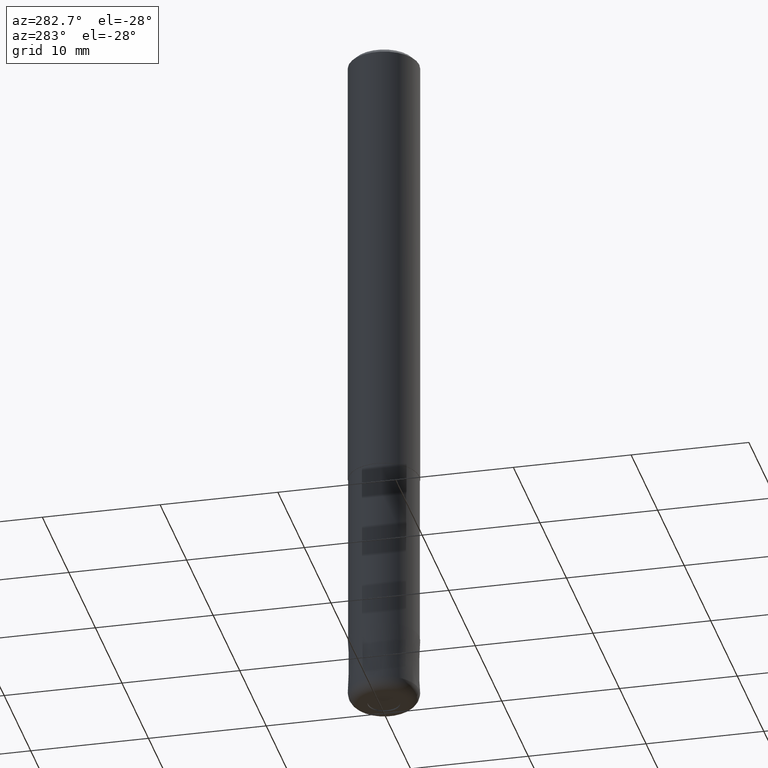
[diagram: clean part render]
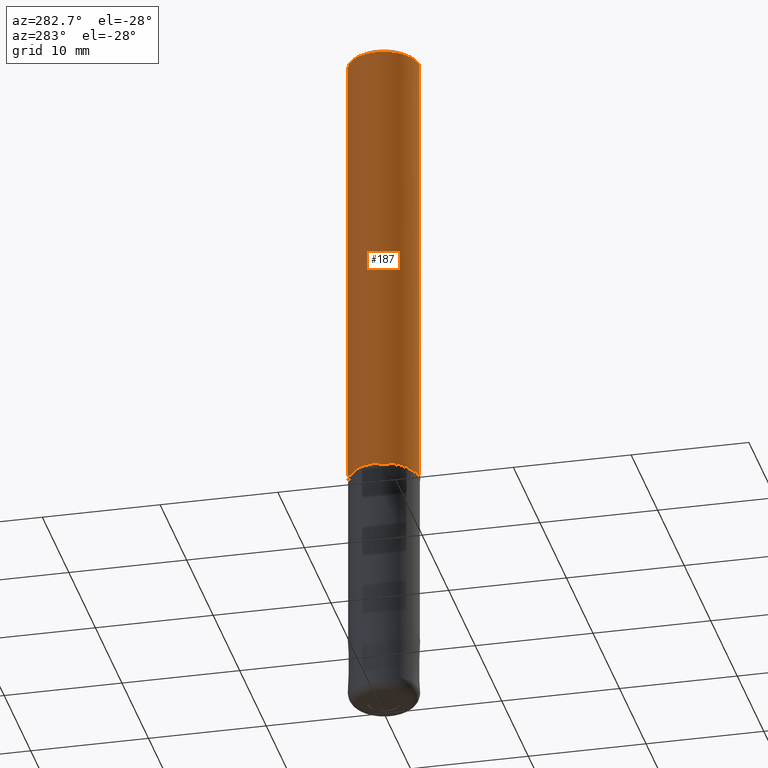
[diagram: same view with one face highlighted and labeled with its STEP entity id]
A machine part, auxiliary view. The second image highlights one B-rep face of the part: STEP entity #187.
In plain terms, the highlighted cylindrical surface (edge-blend (fillet) strip) has radius 3 mm, axis along (-0, -0, 1).
Its self-contained STEP definition (entity closure, byte-faithful):
#119=VERTEX_POINT('',#306);
#133=VERTEX_POINT('',#320);
#153=EDGE_CURVE('',#119,#175,#348,.T.);
#175=VERTEX_POINT('',#373);
#187=ADVANCED_FACE('',(#386),#387,.T.);
#209=EDGE_CURVE('',#271,#133,#412,.T.);
#255=EDGE_CURVE('',#119,#133,#463,.T.);
#267=EDGE_CURVE('',#175,#271,#477,.T.);
#271=VERTEX_POINT('',#482);
#306=CARTESIAN_POINT('',(3.67381906146713E-016,-3.0,-39.0));
#320=CARTESIAN_POINT('',(0.0,3.0,-39.0));
#348=LINE('',#560,#561);
#373=CARTESIAN_POINT('',(3.67381906146713E-016,-3.0,-0.399999999999999));
#386=FACE_OUTER_BOUND('',#611,.T.);
#387=CYLINDRICAL_SURFACE('',#612,3.0);
#412=LINE('',#645,#646);
#463=CIRCLE('',#709,3.0);
#477=CIRCLE('',#724,3.0);
#482=CARTESIAN_POINT('',(0.0,3.0,-0.399999999999999));
#560=CARTESIAN_POINT('',(3.67381906146713E-016,-3.0,-19.7));
#561=VECTOR('',#801,1.0);
#611=EDGE_LOOP('',(#853,#854,#855,#856));
#612=AXIS2_PLACEMENT_3D('',#857,#858,#859);
#645=CARTESIAN_POINT('',(-3.67381906146713E-016,3.0,-19.7));
#646=VECTOR('',#900,1.0);
#709=AXIS2_PLACEMENT_3D('',#958,#959,#960);
#724=AXIS2_PLACEMENT_3D('',#977,#978,#979);
#801=DIRECTION('',(-0.0,-0.0,1.0));
#853=ORIENTED_EDGE('',*,*,#209,.T.);
#854=ORIENTED_EDGE('',*,*,#255,.F.);
#855=ORIENTED_EDGE('',*,*,#153,.T.);
#856=ORIENTED_EDGE('',*,*,#267,.T.);
#857=CARTESIAN_POINT('',(0.0,0.0,-19.7));
#858=DIRECTION('',(-0.0,-0.0,1.0));
#859=DIRECTION('',(0.0,1.0,0.0));
#900=DIRECTION('',(0.0,0.0,-1.0));
#958=CARTESIAN_POINT('',(0.0,0.0,-39.0));
#959=DIRECTION('',(0.0,0.0,-1.0));
#960=DIRECTION('',(0.0,1.0,0.0));
#977=CARTESIAN_POINT('',(0.0,0.0,-0.399999999999999));
#978=DIRECTION('',(0.0,0.0,-1.0));
#979=DIRECTION('',(0.0,1.0,0.0));